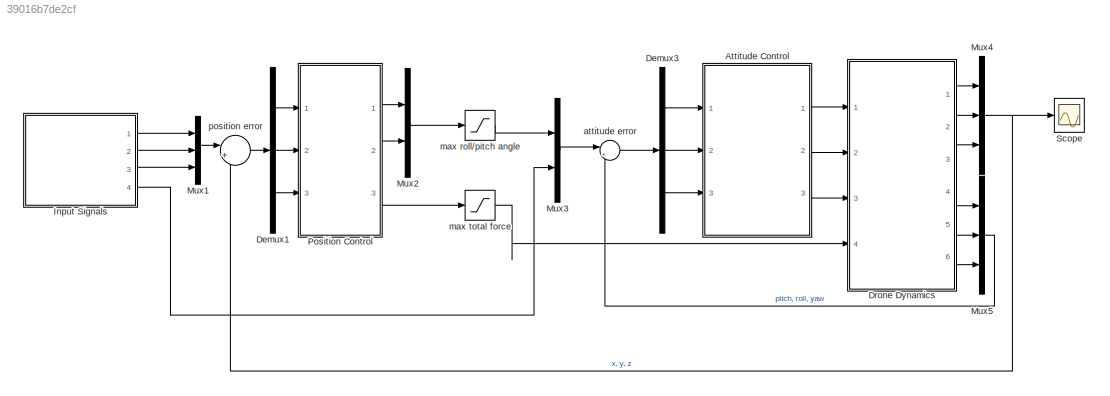
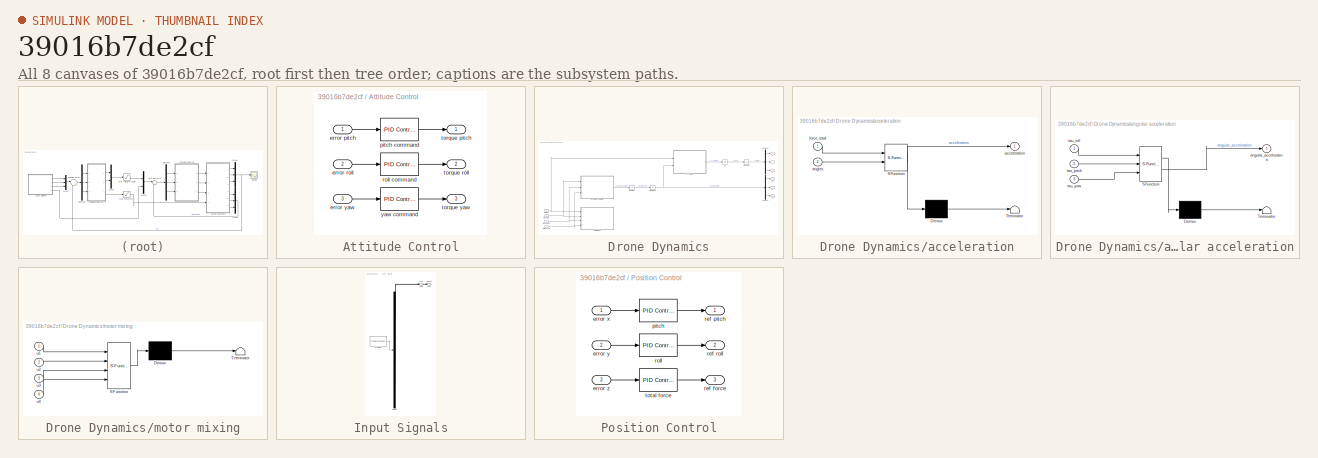
[diagram: thumbnail index - all 8 canvases of the model, root first then tree order]
MODEL slx_39016b7de2cf
KIND model
CONFIG AbsTol = auto
CONFIG EnableMultiTasking = off
CONFIG FixedStep = auto
CONFIG MaxStep = auto
CONFIG MinStep = auto
CONFIG RelTol = 1e-5
CONFIG SampleTimeConstraint = Unconstrained
CONFIG SolverName = ode15s
CONFIG StartTime = 0.0
CONFIG StopTime = 20
BLOCK [SubSystem] Attitude Control
  NameLocation = top
  Ports = [3, 3]
BLOCK [Inport] Attitude Control/error pitch
  NameLocation = top
BLOCK [Inport] Attitude Control/error roll
  NameLocation = top
  Port = 2
BLOCK [Inport] Attitude Control/error yaw
  NameLocation = top
  Port = 3
BLOCK [Reference] Attitude Control/pitch command  REF=slpidlib/PID Controller
  Ports = [1, 1]
  SourceBlock = slpidlib/PID Controller
  SourceType = PID 1dof
BLOCK [Reference] Attitude Control/roll command  REF=slpidlib/PID Controller
  Ports = [1, 1]
  SourceBlock = slpidlib/PID Controller
  SourceType = PID 1dof
BLOCK [Outport] Attitude Control/torque pitch
  NameLocation = top
BLOCK [Outport] Attitude Control/torque roll
  NameLocation = top
  Port = 2
BLOCK [Outport] Attitude Control/torque yaw
  NameLocation = top
  Port = 3
BLOCK [Reference] Attitude Control/yaw command  REF=slpidlib/PID Controller
  Ports = [1, 1]
  SourceBlock = slpidlib/PID Controller
  SourceType = PID 1dof
BLOCK [Demux] Demux1
  Outputs = 3
  Ports = [1, 3]
BLOCK [Demux] Demux3
  Outputs = 3
  Ports = [1, 3]
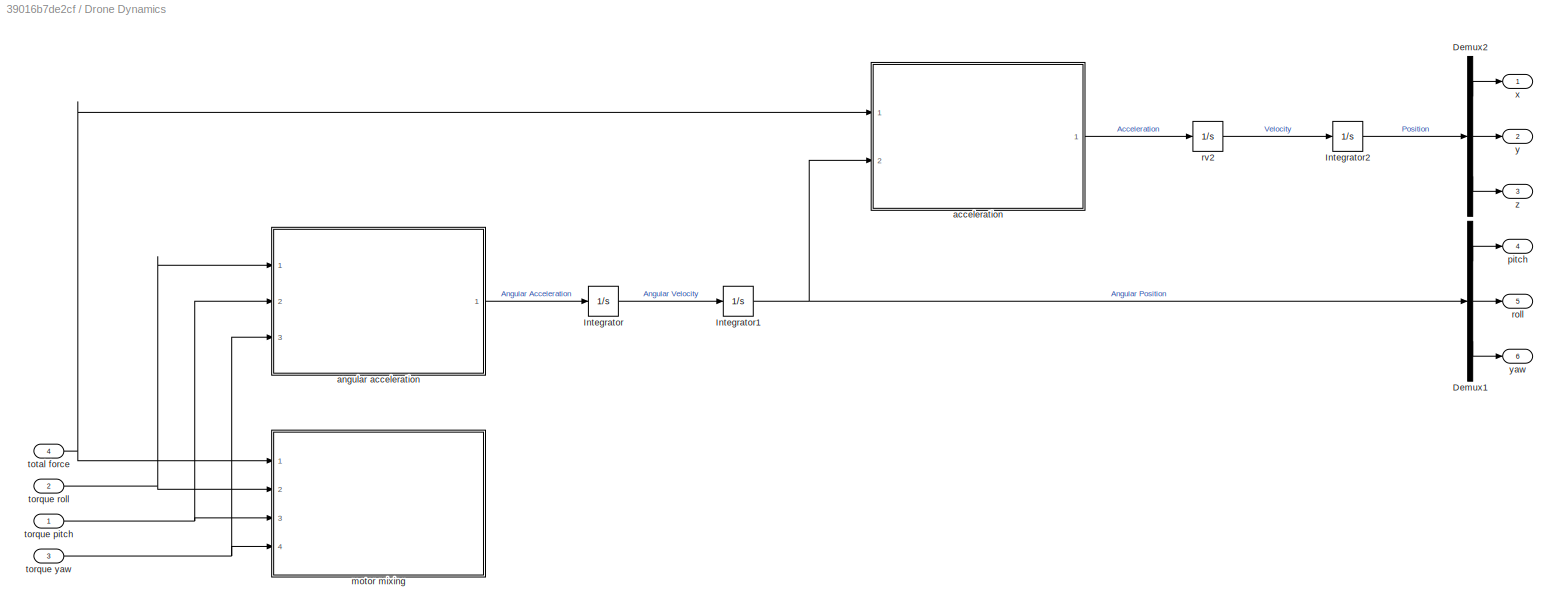
BLOCK [SubSystem] Drone Dynamics
  NameLocation = top
  Ports = [4, 6]
BLOCK [Demux] Drone Dynamics/Demux1
  Outputs = 3
  Ports = [1, 3]
BLOCK [Demux] Drone Dynamics/Demux2
  Outputs = 3
  Ports = [1, 3]
BLOCK [Integrator] Drone Dynamics/Integrator
  Ports = [1, 1]
BLOCK [Integrator] Drone Dynamics/Integrator1
  Ports = [1, 1]
BLOCK [Integrator] Drone Dynamics/Integrator2
  Ports = [1, 1]
BLOCK [SubSystem] Drone Dynamics/acceleration
  ErrorFcn = Stateflow.Translate.translate
  PermitHierarchicalResolution = ExplicitOnly
  Ports = [2, 1]
  SFBlockType = MATLAB Function
  TreatAsAtomicUnit = on
BLOCK [Demux] Drone Dynamics/acceleration/ Demux 
  Outputs = 1
  Ports = [1, 1]
BLOCK [S-Function] Drone Dynamics/acceleration/ SFunction 
  EnableBusSupport = on
  FunctionName = sf_sfun
  PortCounts = [2 2]
  Ports = [2, 2]
  SFcnIsStateOwnerBlock = off
  SFunctionDeploymentMode = off
  Tag = Stateflow S-Function 1
BLOCK [Terminator] Drone Dynamics/acceleration/ Terminator 
BLOCK [Outport] Drone Dynamics/acceleration/acceleration
BLOCK [Inport] Drone Dynamics/acceleration/angles
  Port = 2
BLOCK [Inport] Drone Dynamics/acceleration/force_total
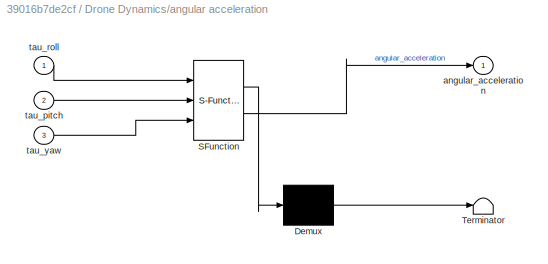
BLOCK [SubSystem] Drone Dynamics/angular acceleration
  ErrorFcn = Stateflow.Translate.translate
  PermitHierarchicalResolution = ExplicitOnly
  Ports = [3, 1]
  SFBlockType = MATLAB Function
  TreatAsAtomicUnit = on
BLOCK [Demux] Drone Dynamics/angular acceleration/ Demux 
  Outputs = 1
  Ports = [1, 1]
BLOCK [S-Function] Drone Dynamics/angular acceleration/ SFunction 
  EnableBusSupport = on
  FunctionName = sf_sfun
  PortCounts = [3 2]
  Ports = [3, 2]
  SFcnIsStateOwnerBlock = off
  SFunctionDeploymentMode = off
  Tag = Stateflow S-Function 6
BLOCK [Terminator] Drone Dynamics/angular acceleration/ Terminator 
BLOCK [Outport] Drone Dynamics/angular acceleration/angular_acceleration
BLOCK [Inport] Drone Dynamics/angular acceleration/tau_pitch
  Port = 2
BLOCK [Inport] Drone Dynamics/angular acceleration/tau_roll
BLOCK [Inport] Drone Dynamics/angular acceleration/tau_yaw
  Port = 3
BLOCK [SubSystem] Drone Dynamics/motor mixing
  ErrorFcn = Stateflow.Translate.translate
  PermitHierarchicalResolution = ExplicitOnly
  Ports = [4]
  SFBlockType = MATLAB Function
  TreatAsAtomicUnit = on
BLOCK [Demux] Drone Dynamics/motor mixing/ Demux 
  Outputs = 1
  Ports = [1, 1]
BLOCK [S-Function] Drone Dynamics/motor mixing/ SFunction 
  EnableBusSupport = on
  FunctionName = sf_sfun
  PortCounts = [4 1]
  Ports = [4, 1]
  SFcnIsStateOwnerBlock = off
  SFunctionDeploymentMode = off
  Tag = Stateflow S-Function 2
BLOCK [Terminator] Drone Dynamics/motor mixing/ Terminator 
BLOCK [Inport] Drone Dynamics/motor mixing/u1
BLOCK [Inport] Drone Dynamics/motor mixing/u2
  Port = 2
BLOCK [Inport] Drone Dynamics/motor mixing/u3
  Port = 3
BLOCK [Inport] Drone Dynamics/motor mixing/u4
  Port = 4
BLOCK [Outport] Drone Dynamics/pitch
  NameLocation = top
  Port = 4
BLOCK [Outport] Drone Dynamics/roll
  NameLocation = top
  Port = 5
BLOCK [Integrator] Drone Dynamics/rv2
  Ports = [1, 1]
BLOCK [Inport] Drone Dynamics/torque pitch
  NameLocation = top
BLOCK [Inport] Drone Dynamics/torque roll
  NameLocation = top
  Port = 2
BLOCK [Inport] Drone Dynamics/torque yaw
  NameLocation = top
  Port = 3
BLOCK [Inport] Drone Dynamics/total force
  NameLocation = top
  Port = 4
BLOCK [Outport] Drone Dynamics/x
  NameLocation = top
BLOCK [Outport] Drone Dynamics/y
  NameLocation = top
  Port = 2
BLOCK [Outport] Drone Dynamics/yaw
  NameLocation = top
  Port = 6
BLOCK [Outport] Drone Dynamics/z
  NameLocation = top
  Port = 3
BLOCK [SubSystem] Input Signals
  ClipboardFcn = sigbuilder_block('clipboard');
  CloseFcn = sigbuilder_block('close');
  ContinueFcn = sigbuilder_block('continue');
  CopyFcn = sigbuilder_block('copy');
  DeleteFcn = sigbuilder_block('delete');
  LoadFcn = sigbuilder_block('load');
  MaskHideContents = on
  ModelCloseFcn = sigbuilder_block('modelClose');
  NameChangeFcn = sigbuilder_block('namechange');
  NameLocation = top
  OpenFcn = sigbuilder_block('open',[596.4 75.6 756 505.2 ]);
  PauseFcn = sigbuilder_block('pause');
  Ports = [0, 4]
  PreSaveFcn = sigbuilder_block('preSave');
  StartFcn = sigbuilder_block('start');
  StopFcn = sigbuilder_block('stop');
  Tag = STV Subsys
BLOCK [Demux] Input Signals/Demux
  DisplayOption = none
  Ports = [1, 4]
  Tag = STV Demux
BLOCK [FromWorkspace] Input Signals/FromWs
  Tag = STV FromWs
  VariableName = tuvar
BLOCK [Outport] Input Signals/x ref
  Tag = STV Outport
BLOCK [Outport] Input Signals/y ref
  Port = 2
  Tag = STV Outport
BLOCK [Outport] Input Signals/yaw ref
  Port = 4
  Tag = STV Outport
BLOCK [Outport] Input Signals/z ref
  Port = 3
  Tag = STV Outport
BLOCK [Mux] Mux1
  DisplayOption = bar
  Inputs = 3
  Ports = [3, 1]
BLOCK [Mux] Mux2
  DisplayOption = bar
  Inputs = 2
  Ports = [2, 1]
BLOCK [Mux] Mux3
  DisplayOption = bar
  Inputs = 2
  Ports = [2, 1]
BLOCK [Mux] Mux4
  DisplayOption = bar
  Inputs = 3
  Ports = [3, 1]
BLOCK [Mux] Mux5
  DisplayOption = bar
  Inputs = 3
  Ports = [3, 1]
BLOCK [SubSystem] Position Control
  NameLocation = top
  Ports = [3, 3]
BLOCK [Inport] Position Control/error x
  NameLocation = top
BLOCK [Inport] Position Control/error y
  NameLocation = top
  Port = 2
BLOCK [Inport] Position Control/error z
  NameLocation = top
  Port = 3
BLOCK [Reference] Position Control/pitch  REF=slpidlib/PID Controller
  Ports = [1, 1]
  SourceBlock = slpidlib/PID Controller
  SourceType = PID 1dof
BLOCK [Outport] Position Control/ref force
  NameLocation = top
  Port = 3
BLOCK [Outport] Position Control/ref pitch
  NameLocation = top
BLOCK [Outport] Position Control/ref roll
  NameLocation = top
  Port = 2
BLOCK [Reference] Position Control/roll  REF=slpidlib/PID Controller
  Ports = [1, 1]
  SourceBlock = slpidlib/PID Controller
  SourceType = PID 1dof
BLOCK [Reference] Position Control/total force  REF=slpidlib/PID Controller
  Ports = [1, 1]
  SourceBlock = slpidlib/PID Controller
  SourceType = PID 1dof
BLOCK [Scope] Scope
  Floating = off
  NumInputPorts = 1
  Ports = [1]
  ScopeSpecificationString = Simulink.scopes.TimeScopeBlockCfg('CurrentConfiguration', extmgr.ConfigurationSet(extmgr.Configuration('Core','General UI',true),extmgr.Configuration('Core','Source UI',true),extmgr.Configuration('Sources','WiredSimulink',true),extmgr.Configuration('Visuals','Time Domain',true,'SerializedDisplays',{struct('MinYLimReal','-78024.00166','MaxYLimReal','14003.1754','YLabelReal','','MinYLimMag','   0.00...<+1541ch>
BLOCK [Sum] attitude error
  Inputs = |+-
  NameLocation = top
  Ports = [2, 1]
BLOCK [Saturate] max roll//pitch angle
  LowerLimit = -0.17
  NameLocation = top
  UpperLimit = 0.17
  ZeroCross = off
BLOCK [Saturate] max total force
  LowerLimit = -0.17
  NameLocation = top
  UpperLimit = 0.17
  ZeroCross = off
BLOCK [Sum] position error
  Inputs = |+-
  NameLocation = top
  Ports = [2, 1]
LINE Attitude Control/error pitch:1 -> Attitude Control/pitch command:1
LINE Attitude Control/error roll:1 -> Attitude Control/roll command:1
LINE Attitude Control/error yaw:1 -> Attitude Control/yaw command:1
LINE Attitude Control/pitch command:1 -> Attitude Control/torque pitch:1
LINE Attitude Control/roll command:1 -> Attitude Control/torque roll:1
LINE Attitude Control/yaw command:1 -> Attitude Control/torque yaw:1
LINE Attitude Control:1 -> Drone Dynamics:1
LINE Attitude Control:2 -> Drone Dynamics:2
LINE Attitude Control:3 -> Drone Dynamics:3
LINE Demux1:1 -> Position Control:1
LINE Demux1:2 -> Position Control:2
LINE Demux1:3 -> Position Control:3
LINE Demux3:1 -> Attitude Control:1
LINE Demux3:2 -> Attitude Control:2
LINE Demux3:3 -> Attitude Control:3
LINE Drone Dynamics/Demux1:1 -> Drone Dynamics/pitch:1
LINE Drone Dynamics/Demux1:2 -> Drone Dynamics/roll:1
LINE Drone Dynamics/Demux1:3 -> Drone Dynamics/yaw:1
LINE Drone Dynamics/Demux2:1 -> Drone Dynamics/x:1
LINE Drone Dynamics/Demux2:2 -> Drone Dynamics/y:1
LINE Drone Dynamics/Demux2:3 -> Drone Dynamics/z:1
NET Drone Dynamics/Integrator1:1 -> Drone Dynamics/Demux1:1, Drone Dynamics/acceleration:2
LINE Drone Dynamics/Integrator2:1 -> Drone Dynamics/Demux2:1
LINE Drone Dynamics/Integrator:1 -> Drone Dynamics/Integrator1:1
LINE Drone Dynamics/acceleration:1 -> Drone Dynamics/rv2:1
LINE Drone Dynamics/angular acceleration:1 -> Drone Dynamics/Integrator:1
LINE Drone Dynamics/rv2:1 -> Drone Dynamics/Integrator2:1
NET Drone Dynamics/torque pitch:1 -> Drone Dynamics/angular acceleration:2, Drone Dynamics/motor mixing:3
NET Drone Dynamics/torque roll:1 -> Drone Dynamics/angular acceleration:1, Drone Dynamics/motor mixing:2
NET Drone Dynamics/torque yaw:1 -> Drone Dynamics/angular acceleration:3, Drone Dynamics/motor mixing:4
NET Drone Dynamics/total force:1 -> Drone Dynamics/acceleration:1, Drone Dynamics/motor mixing:1
LINE Drone Dynamics:1 -> Mux4:1
LINE Drone Dynamics:2 -> Mux4:2
LINE Drone Dynamics:3 -> Mux4:3
LINE Drone Dynamics:4 -> Mux5:1
LINE Drone Dynamics:5 -> Mux5:2
LINE Drone Dynamics:6 -> Mux5:3
LINE Input Signals:1 -> Mux1:1
LINE Input Signals:2 -> Mux1:2
LINE Input Signals:3 -> Mux1:3
LINE Input Signals:4 -> Mux3:2
LINE Mux1:1 -> position error:1
LINE Mux2:1 -> max roll//pitch angle:1
LINE Mux3:1 -> attitude error:1
NET Mux4:1 -> Scope:1, position error:2
LINE Mux5:1 -> attitude error:2
LINE Position Control/error x:1 -> Position Control/pitch:1
LINE Position Control/error y:1 -> Position Control/roll:1
LINE Position Control/error z:1 -> Position Control/total force:1
LINE Position Control/pitch:1 -> Position Control/ref pitch:1
LINE Position Control/roll:1 -> Position Control/ref roll:1
LINE Position Control/total force:1 -> Position Control/ref force:1
LINE Position Control:1 -> Mux2:1
LINE Position Control:2 -> Mux2:2
LINE Position Control:3 -> max total force:1
LINE attitude error:1 -> Demux3:1
LINE max roll//pitch angle:1 -> Mux3:1
LINE max total force:1 -> Drone Dynamics:4
LINE position error:1 -> Demux1:1
note: NET lines group one-source signal fan-out (src -> all destinations, sorted); 1:1 wires keep LINE
CHART Drone Dynamics/acceleration states=1 transitions=1
  STATE_LABEL 'eML_blk_kernel()'
  STATE_LABEL 'SCRIPT:\nfunction acceleration = acceleration(force_total, angles)\nm = 20;\ng = 9.82;\ntheta = angles(1); %roll\nphi = angles(2);   %pitch\npsi = angles(3);   %yaw\n\n%Rotation matrices of drone:\nRz = [cos(psi) -sin(psi) 0;\n        sin(psi) cos(psi) 0;\n        0 0 1];\n\nRy = [1 0 0;\n         0 cos(phi) sin(phi);\n         0 -sin(phi) cos(phi)];\n\nRx = [cos(theta) 0 sin(theta);\n        0 1 0;\n        -sin(th...<+95ch>'
CHART Drone Dynamics/motor mixing states=1 transitions=1
  STATE_LABEL 'eML_blk_kernel()'
  STATE_LABEL 'SCRIPT:\nfunction motor_mixing(u1, u2, u3, u4)\n\nU = [u1;  % total_force\n     u2;  % tau_roll\n     u3;  % tau_pitch\n     u4]; % tau_yaw\n\n%motor mixing algorithm\nL = 5; % length CoM to motor\nc = 2;\nmm = [1 1 1 1;\n      -L -L L L;\n      L -L -L L;\n      c -c c -c];\n\nF = mm\\U; % inv(mm)*U;\nF1 = F(1);\nF2 = F(2);\nF3 = F(3);\nF4 = F(4);'
CHART Drone Dynamics/angular acceleration states=1 transitions=1
  STATE_LABEL 'eML_blk_kernel()'
  STATE_LABEL 'SCRIPT:\nfunction angular_acceleration = angular_acceleration(tau_roll, tau_pitch, tau_yaw)\n\n%Drone Properties\nM = 1.324; %Mass of central sphere 1.324kg\nm = 119*10^-3; %Point mass of motors 119g\nR = 12.5*10^-3; %Radius of central sphere 12,5cm\nL = 23.75*10^-3; %Length from center of sphere to motors 23,75cm\n\n%Inertial Matrix (bodyframe)\nIx = ((2*M*R^2)/5)+2*m*L^2;\nIy = ((2*M*R^2)/5)+2*m*L^2;\nIz = ...<+155ch>'
CHART  states=0 transitions=0
CHART  states=0 transitions=0
CHART  states=0 transitions=0
